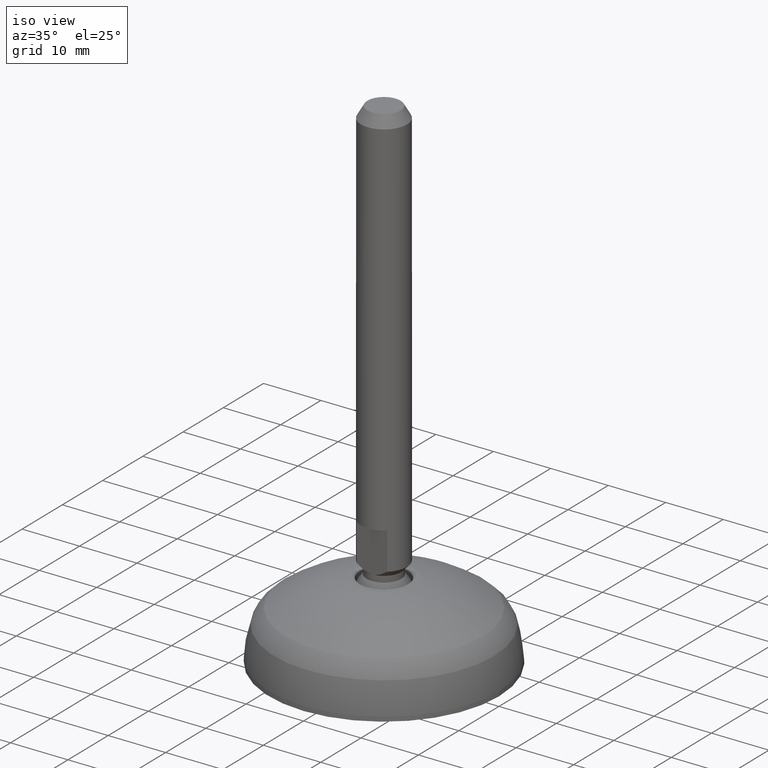
[diagram: clean part render]
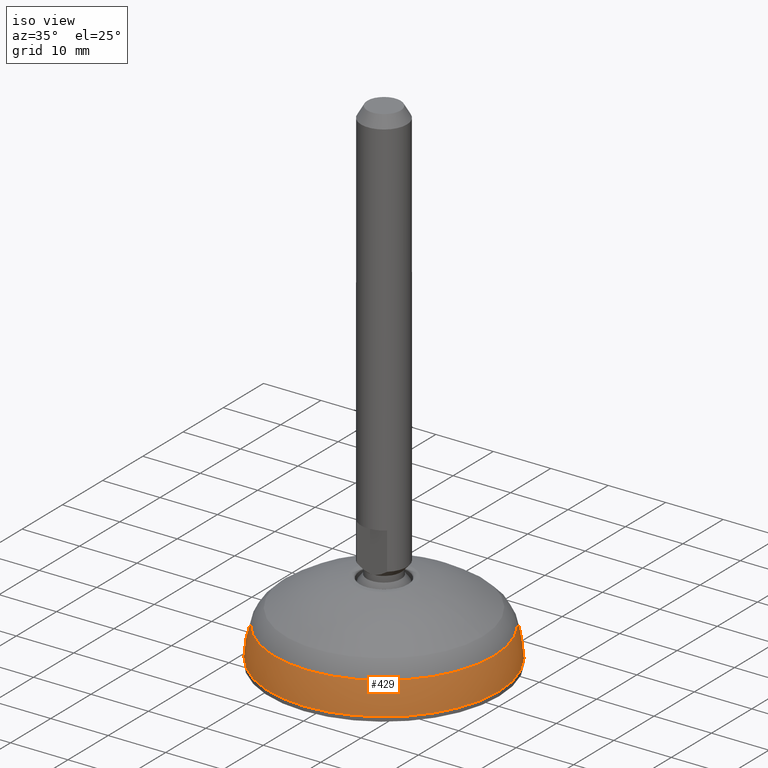
[diagram: same view with one face highlighted and labeled with its STEP entity id]
A machine part, iso view. The second image highlights one B-rep face of the part: STEP entity #429.
In plain terms, the highlighted face is a freeform B-spline surface patch.
Its self-contained STEP definition (entity closure, byte-faithful):
#334=CARTESIAN_POINT('',(19.974870041338349,1.401167E-015,0.757414659204449));
#335=VERTEX_POINT('',#334);
#345=CARTESIAN_POINT('',(-19.974870041338345,5.857621E-016,0.757414659204465));
#346=VERTEX_POINT('',#345);
#347=CARTESIAN_POINT('',(0.0,5.857621E-016,0.757414659204466));
#348=DIRECTION('',(0.0,0.0,1.0));
#349=DIRECTION('',(1.0,0.0,0.0));
#350=AXIS2_PLACEMENT_3D('',#347,#348,#349);
#351=CIRCLE('',#350,19.974870041338349);
#352=EDGE_CURVE('',#346,#335,#351,.T.);
#354=CARTESIAN_POINT('',(0.0,5.857621E-016,0.757414659204466));
#355=DIRECTION('',(0.0,0.0,1.0));
#356=DIRECTION('',(1.0,0.0,0.0));
#357=AXIS2_PLACEMENT_3D('',#354,#355,#356);
#358=CIRCLE('',#357,19.974870041338349);
#359=EDGE_CURVE('',#335,#346,#358,.T.);
#364=CARTESIAN_POINT('',(-19.065924078483114,0.000001078531518,6.057993538614062));
#365=CARTESIAN_POINT('',(-19.880165605589610,0.000001124591973,3.469397098600257));
#366=CARTESIAN_POINT('',(-19.974870061349534,0.000001129949266,0.757414086157872));
#367=CARTESIAN_POINT('',(-19.065925157014689,-19.065924078483143,6.057993538614062));
#368=CARTESIAN_POINT('',(-19.880166730181646,-19.880165605589639,3.469397098600258));
#369=CARTESIAN_POINT('',(-19.974871191298863,-19.974870061349570,0.757414086157872));
#370=CARTESIAN_POINT('',(0.0,-19.065924078483143,6.057993538614062));
#371=CARTESIAN_POINT('',(0.0,-19.880165605589639,3.469397098600258));
#372=CARTESIAN_POINT('',(0.0,-19.974870061349563,0.757414086157872));
#373=CARTESIAN_POINT('',(19.065924078483143,-19.065924078483143,6.057993538614062));
#374=CARTESIAN_POINT('',(19.880165605589642,-19.880165605589642,3.469397098600258));
#375=CARTESIAN_POINT('',(19.974870061349566,-19.974870061349566,0.757414086157872));
#376=CARTESIAN_POINT('',(19.065924078483143,5.857621E-016,6.057993538614062));
#377=CARTESIAN_POINT('',(19.880165605589639,5.857621E-016,3.469397098600258));
#378=CARTESIAN_POINT('',(19.974870061349563,5.857621E-016,0.757414086157872));
#379=CARTESIAN_POINT('',(19.065924078483143,19.065924078483143,6.057993538614062));
#380=CARTESIAN_POINT('',(19.880165605589642,19.880165605589642,3.469397098600258));
#381=CARTESIAN_POINT('',(19.974870061349566,19.974870061349566,0.757414086157872));
#382=CARTESIAN_POINT('',(0.0,19.065924078483143,6.057993538614062));
#383=CARTESIAN_POINT('',(0.0,19.880165605589639,3.469397098600258));
#384=CARTESIAN_POINT('',(0.0,19.974870061349563,0.757414086157872));
#385=CARTESIAN_POINT('',(-19.065925157014689,19.065924078483143,6.057993538614062));
#386=CARTESIAN_POINT('',(-19.880166730181646,19.880165605589639,3.469397098600258));
#387=CARTESIAN_POINT('',(-19.974871191298863,19.974870061349570,0.757414086157872));
#388=CARTESIAN_POINT('',(-19.065924078483111,-0.000001078531517,6.057993538614061));
#389=CARTESIAN_POINT('',(-19.880165605589607,-0.000001124591972,3.469397098600257));
#390=CARTESIAN_POINT('',(-19.974870061349534,-0.000001129949265,0.757414086157872));
#398=(BOUNDED_SURFACE()B_SPLINE_SURFACE(2,2,((#364,#367,#370,#373,#376,#379,#382,#385,#388),(#365,#368,#371,#374,#377,#380,#383,#386,#389),(#366,#369,#372,#375,#378,#381,#384,#387,#390)),.UNSPECIFIED.,.F.,.T.,.U.)B_SPLINE_SURFACE_WITH_KNOTS((3,3),(3,2,2,2,3),(0.397897324583322,0.487744970890208),(-1.000000E-008,0.250000000000000,0.500000000000000,0.750000000000000,1.000000010000000),.UNSPECIFIED.)GEOMETRIC_REPRESENTATION_ITEM()RATIONAL_B_SPLINE_SURFACE(((0.904825835633277,0.639808458576735,0.904825814431888,0.639808469177429,0.904825814431888,0.639808469177429,0.904825814431888,0.639808458576735,0.904825835633277),(0.935955759644944,0.661820638062720,0.935955737714136,0.661820649028124,0.935955737714136,0.661820649028124,0.935955737714136,0.661820638062720,0.935955759644944),(0.985997117044880,0.697205219804611,0.985997093941530,0.697205231356285,0.985997093941530,0.697205231356285,0.985997093941530,0.697205219804611,0.985997117044880)))REPRESENTATION_ITEM('')SURFACE());
#399=CARTESIAN_POINT('',(-19.065924265968285,5.857621E-016,6.057992942570547));
#400=VERTEX_POINT('',#399);
#401=CARTESIAN_POINT('',(0.003365951230350,5.857621E-016,0.059759285248639));
#402=DIRECTION('',(0.0,1.0,0.0));
#403=DIRECTION('',(1.0,0.0,0.0));
#404=AXIS2_PLACEMENT_3D('',#401,#402,#403);
#405=CIRCLE('',#404,19.990413612418745);
#406=EDGE_CURVE('',#346,#400,#405,.T.);
#407=ORIENTED_EDGE('',*,*,#406,.T.);
#408=CARTESIAN_POINT('',(19.065924265968285,5.857621E-016,6.057992942570547));
#409=VERTEX_POINT('',#408);
#410=CARTESIAN_POINT('',(0.0,5.857621E-016,6.057992942570547));
#411=DIRECTION('',(0.0,0.0,-1.0));
#412=DIRECTION('',(-1.0,0.0,0.0));
#413=AXIS2_PLACEMENT_3D('',#410,#411,#412);
#414=CIRCLE('',#413,19.065924265968285);
#415=EDGE_CURVE('',#400,#409,#414,.T.);
#416=ORIENTED_EDGE('',*,*,#415,.T.);
#417=CARTESIAN_POINT('',(0.0,5.857621E-016,6.057992942570547));
#418=DIRECTION('',(0.0,0.0,-1.0));
#419=DIRECTION('',(-1.0,0.0,0.0));
#420=AXIS2_PLACEMENT_3D('',#417,#418,#419);
#421=CIRCLE('',#420,19.065924265968285);
#422=EDGE_CURVE('',#409,#400,#421,.T.);
#423=ORIENTED_EDGE('',*,*,#422,.T.);
#424=ORIENTED_EDGE('',*,*,#406,.F.);
#425=ORIENTED_EDGE('',*,*,#352,.T.);
#426=ORIENTED_EDGE('',*,*,#359,.T.);
#427=EDGE_LOOP('',(#407,#416,#423,#424,#425,#426));
#428=FACE_OUTER_BOUND('',#427,.T.);
#429=ADVANCED_FACE('',(#428),#398,.T.);